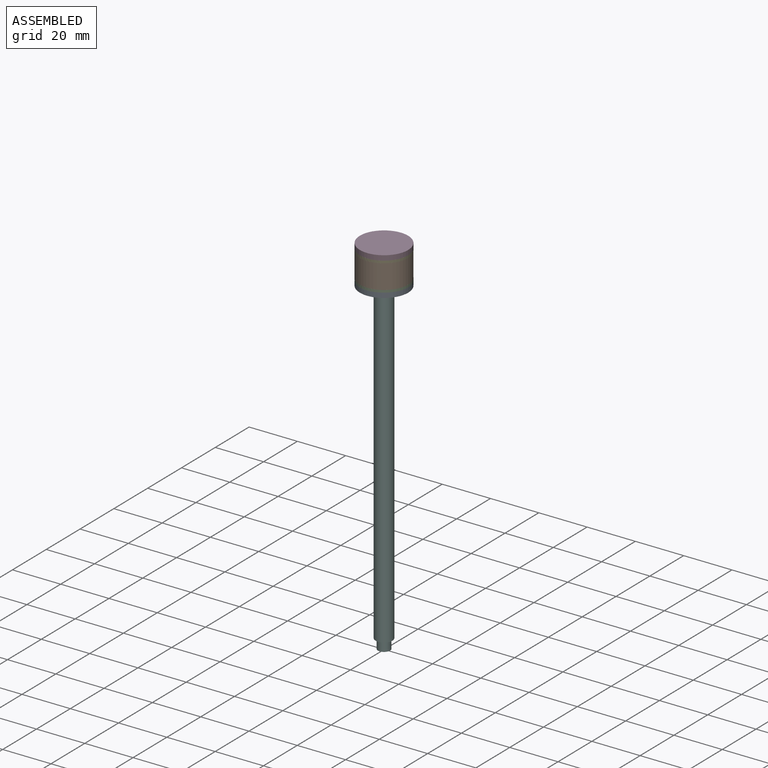
[diagram: assembled view]
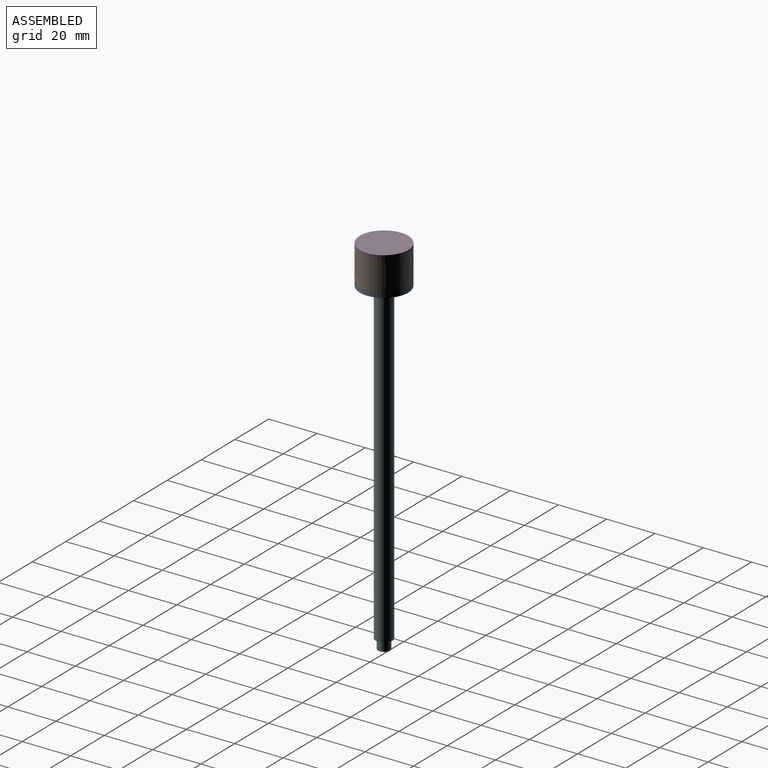
[diagram: assembled view, second angle]
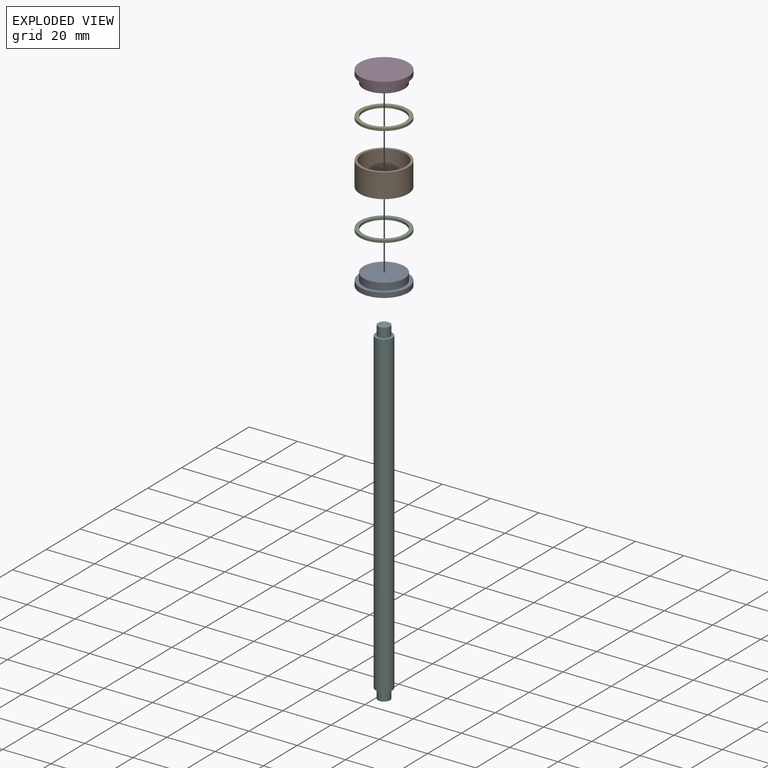
[diagram: exploded view]
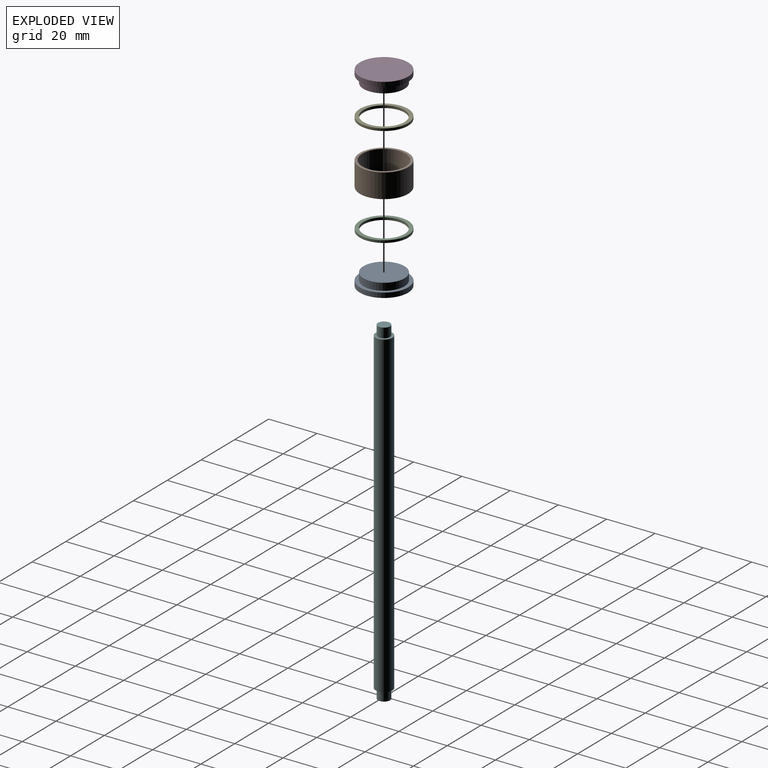
[diagram: exploded view, second angle]
ASSEMBLY  parts=6 mates=5
PART A: 7 faces, bbox 20x20x5 mm
  f0: cylinder r=10mm len=20mm, axis (0,0,-1), area 125.7mm2, adj f1,f3
  f1: plane 20x20mm, normal (0,0,-1), area 294.5mm2, adj f0,f5
  f2: cylinder r=8.5mm len=17mm, axis (0,0,1), area 160.2mm2, adj f3,f4
  f3: plane 20x20mm, normal (0,0,1), area 87.2mm2, adj f0,f2
  f4: plane 17x17mm, normal (0,0,1), area 227mm2, adj f2
  f5: cylinder r=2.5mm len=5mm, axis (0,0,-1), area 62.8mm2, adj f1,f6
  f6: plane 5x5mm, normal (0,0,-1), area 19.6mm2, adj f5
PART B: 4 faces, bbox 20x20x10 mm
  f0: cylinder r=10mm len=20mm, axis (0,0,-1), area 628.3mm2, adj f1,f2
  f1: plane 20x20mm, normal (0,0,1), area 59.7mm2, adj f0,f3
  f2: plane 20x20mm, normal (0,0,-1), area 59.7mm2, adj f0,f3
  f3: cylinder r=9mm len=18mm, axis (0,0,1), area 565.5mm2, adj f1,f2
PART C: 4 faces, bbox 20x20x1 mm
  f0: cylinder r=8.5mm len=17mm, axis (0,0,-1), area 53.4mm2, adj f2,f3
  f1: cylinder r=10mm len=20mm, axis (0,0,-1), area 62.8mm2, adj f2,f3
  f2: plane 20x20mm, normal (0,0,1), area 87.2mm2, adj f0,f1
  f3: plane 20x20mm, normal (0,0,-1), area 87.2mm2, adj f0,f1
PART D: 5 faces, bbox 20x20x5 mm
  f0: cylinder r=10mm len=20mm, axis (0,0,-1), area 125.7mm2, adj f1,f3
  f1: plane 20x20mm, normal (0,0,-1), area 314.2mm2, adj f0
  f2: cylinder r=8.5mm len=17mm, axis (0,0,1), area 160.2mm2, adj f3,f4
  f3: plane 20x20mm, normal (0,0,1), area 87.2mm2, adj f0,f2
  f4: plane 17x17mm, normal (0,0,1), area 227mm2, adj f2
PART E: same geometry as C
PART F: 7 faces, bbox 7x7x140 mm
  f0: cylinder r=3.5mm len=132mm, axis (0,0,-1), area 2902.8mm2, adj f2,f5
  f1: cylinder r=2.5mm len=5mm, axis (0,0,1), area 62.8mm2, adj f2,f3
  f2: plane 7x7mm, normal (0,0,1), area 18.8mm2, adj f0,f1
  f3: plane 5x5mm, normal (0,0,1), area 19.6mm2, adj f1
  f4: cylinder r=2.5mm len=5mm, axis (0,0,-1), area 62.8mm2, adj f5,f6
  f5: plane 7x7mm, normal (0,0,-1), area 18.8mm2, adj f0,f4
  f6: plane 5x5mm, normal (0,0,-1), area 19.6mm2, adj f4
PLACE A t=(5.4,3.61,-4.76)mm
PLACE B t=(5.4,3.61,0.74)mm
PLACE C rot(axis=(1,0,0),180deg) t=(5.4,3.61,-4.26)mm
PLACE D rot(axis=(1,0,0),180deg) t=(5.4,3.61,6.24)mm
PLACE E t=(5.4,3.61,5.74)mm
PLACE F t=(5.4,3.61,-73.26)mm
MATE fastened D.f0 <-> E.f1  axis (0,0,-1) through (5.4,3.61,6.74)mm
MATE fastened E.f1 <-> B.f0  axis (0,0,-1) through (5.4,3.61,5.74)mm
MATE fastened A.f5 <-> F.f1  axis (0,0,-1) through (5.4,3.61,-3.26)mm
MATE fastened C.f1 <-> B.f0  axis (0,0,1) through (5.4,3.61,-4.26)mm
MATE fastened C.f1 <-> A.f0  axis (0,0,-1) through (5.4,3.61,-5.26)mm
